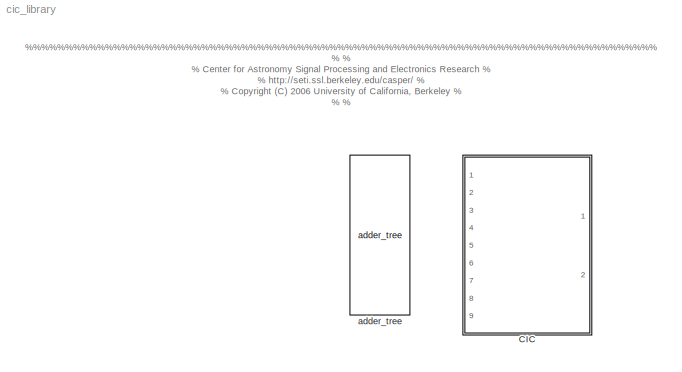
MODEL cic_library
KIND library
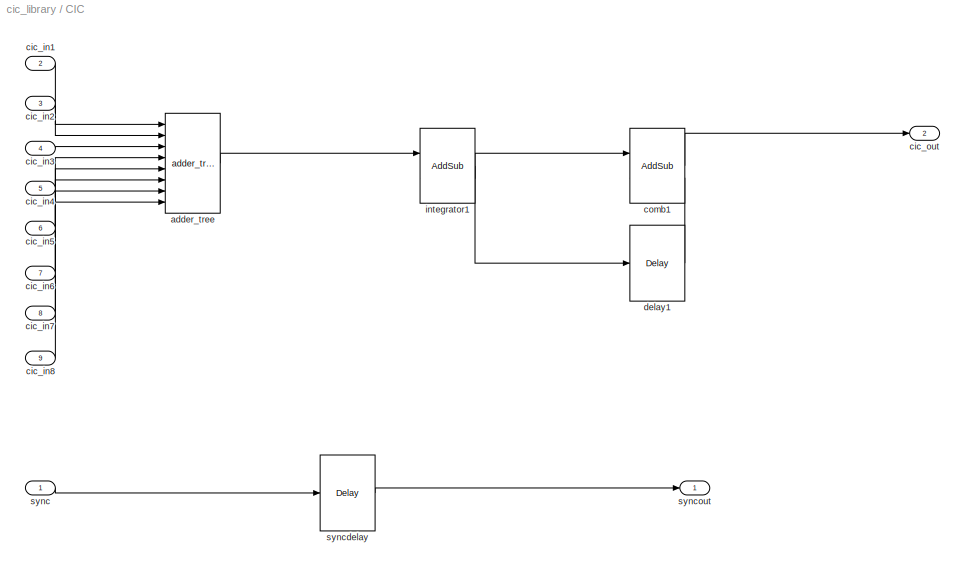
BLOCK [SubSystem] CIC
  Description = Cascaded integrator-comb filter.  Linear phase response.
  MaskCallbackString = |||||||||
  MaskDescription = Cascaded integrator-comb filter.  Linear phase response.  Decimation only; no interpolation.
  MaskEnableString = on,on,on,on,on,on,on,on,off,off
  MaskHelp = eval('xlWeb([getenv(''MLIB_ROOT''), ''<path>''])')
  MaskIconFrame = on
  MaskIconOpaque = on
  MaskIconRotate = none
  MaskIconUnits = autoscale
  MaskInitialization = cic_mask;
  MaskPromptString = Inputs|Input bitwidth|Input binary point|Comb differential delay (D)|Sample rate change (R) (2+ decimates; set to 1 for no decimation)|Number of stages|Pipeline|Adder latency|Integrator latency|Comb latency
  MaskSelfModifiable = on
  MaskStyleString = edit,edit,edit,edit,edit,edit,checkbox,edit,edit,edit
  MaskTabNameString = ,,,,,,,,,
  MaskToolTipString = on,on,on,on,on,on,on,on,on,on
  MaskTunableValueString = on,on,on,on,on,on,on,on,off,off
  MaskType = BEE2 CIC
  MaskValueString = 8|8|7|1|1|1|off|2|1|1
  MaskVarAliasString = ,,,,,,,,,
  MaskVariables = inputs=@1;input_bitwidth=@2;input_binary_pt=@3;D=@4;R=@5;stages=@6;pipeline=@7;add_latency=@8;int_latency=@9;comb_latency=@10;
  MaskVisibilityString = on,on,on,on,on,on,on,on,on,on
  MinAlgLoopOccurrences = off
  Ports = [9, 2]
  RTWSystemCode = Auto
  TreatAsAtomicUnit = off
BLOCK [Reference] CIC/adder_tree  REF=ddc_library/adder_tree  (lib defined in mdl_423f3fd48bb0)
  Ports = [8, 1]
  ShowPortLabels = on
  SourceBlock = ddc_library/adder_tree
  SourceType = Unknown
  latency = add_latency
  num_inputs = inputs
BLOCK [Inport] CIC/cic_in1
  IconDisplay = Port number
  LatchInput = off
  Port = 2
BLOCK [Inport] CIC/cic_in2
  IconDisplay = Port number
  LatchInput = off
  Port = 3
BLOCK [Inport] CIC/cic_in3
  IconDisplay = Port number
  LatchInput = off
  Port = 4
BLOCK [Inport] CIC/cic_in4
  IconDisplay = Port number
  LatchInput = off
  Port = 5
BLOCK [Inport] CIC/cic_in5
  IconDisplay = Port number
  LatchInput = off
  Port = 6
BLOCK [Inport] CIC/cic_in6
  IconDisplay = Port number
  LatchInput = off
  Port = 7
BLOCK [Inport] CIC/cic_in7
  IconDisplay = Port number
  LatchInput = off
  Port = 8
BLOCK [Inport] CIC/cic_in8
  IconDisplay = Port number
  LatchInput = off
  Port = 9
BLOCK [Outport] CIC/cic_out
  BusOutputAsStruct = off
  IconDisplay = Port number
  Port = 2
BLOCK [Reference] CIC/comb1  REF=xbsIndex_r3/AddSub
  Ports = [2, 1]
  SourceBlock = xbsIndex_r3/AddSub
  SourceType = Xilinx Adder/Subtractor
  arith_type = Signed  (2's comp)
  bin_pt = input_binary_pt
  dbl_ovrd = off
  en = off
  explicit_period = on
  gen_core = off
  latency = comb_latency
  mode = Subtraction
  n_bits = ceil(input_bitwidth+log2(inputs)+stages*log2(R*D))
  overflow = Wrap
  period = 1
  pipeline = on
  precision = User Defined
  quantization = Truncate
  show_param = off
  use_carryin = off
  use_carryout = off
  use_core = on
  use_rpm = on
  xl_area = [0, 0, 0, 0, 0, 0, 0]
  xl_use_area = off
BLOCK [Reference] CIC/delay1  REF=xbsIndex_r3/Delay
  Ports = [1, 1]
  SourceBlock = xbsIndex_r3/Delay
  SourceType = Xilinx Delay Block
  accept_only_valid = off
  dbl_ovrd = off
  en = off
  explicit_period = off
  init_zero = on
  latency = D
  period = 1
  reg_retiming = off
  show_param = off
  xl_area = [0, 0, 0, 0, 0, 0, 0]
  xl_use_area = off
BLOCK [Reference] CIC/integrator1  REF=xbsIndex_r3/AddSub
  Ports = [2, 1]
  SourceBlock = xbsIndex_r3/AddSub
  SourceType = Xilinx Adder/Subtractor
  arith_type = Signed  (2's comp)
  bin_pt = input_binary_pt
  dbl_ovrd = off
  en = off
  explicit_period = on
  gen_core = off
  latency = int_latency
  mode = Addition
  n_bits = ceil(input_bitwidth+log2(inputs)+stages*log2(R*D))
  overflow = Wrap
  period = 1
  pipeline = on
  precision = User Defined
  quantization = Truncate
  show_param = off
  use_carryin = off
  use_carryout = off
  use_core = on
  use_rpm = on
  xl_area = [0, 0, 0, 0, 0, 0, 0]
  xl_use_area = off
BLOCK [Inport] CIC/sync
  IconDisplay = Port number
  LatchInput = off
  Port = 1
BLOCK [Reference] CIC/syncdelay  REF=xbsIndex_r3/Delay
  Ports = [1, 1]
  SourceBlock = xbsIndex_r3/Delay
  SourceType = Xilinx Delay Block
  accept_only_valid = off
  dbl_ovrd = off
  en = off
  explicit_period = off
  init_zero = on
  latency = add_latency*log2(inputs)+stages*(int_latency+comb_latency+D+0)
  period = 1
  reg_retiming = off
  show_param = off
  xl_area = [0, 0, 0, 0, 0, 0, 0]
  xl_use_area = off
BLOCK [Outport] CIC/syncout
  BusOutputAsStruct = off
  IconDisplay = Port number
BLOCK [Reference] adder_tree  REF=ddc_library/adder_tree  (lib defined in mdl_423f3fd48bb0)
  Ports = [8, 1]
  ShowPortLabels = on
  SourceBlock = ddc_library/adder_tree
  latency = add_latency
  num_inputs = inputs
ANNOTATION (root): %%%%%%%%%%%%%%%%%%%%%%%%%%%%%%%%%%%%%%%%%%%%%%%%%%%%%%%%%%%%%%%%%%%%%%%%%%%%%%%\n% %\n% Center for Astronomy Signal Processing and Electronics Research %\n% http://seti.ssl.berkeley.edu/casper/ %\n% <copyright redacted>\n% %\n% This program is free software; you can redistribute it and/or modify %\n% it under the terms of the GNU General Public License as publish...<+687ch>
LINE CIC/adder_tree:1 -> CIC/integrator1:1
LINE CIC/cic_in1:1 -> CIC/adder_tree:1
LINE CIC/cic_in2:1 -> CIC/adder_tree:2
LINE CIC/cic_in3:1 -> CIC/adder_tree:3
LINE CIC/cic_in4:1 -> CIC/adder_tree:4
LINE CIC/cic_in5:1 -> CIC/adder_tree:5
LINE CIC/cic_in6:1 -> CIC/adder_tree:6
LINE CIC/cic_in7:1 -> CIC/adder_tree:7
LINE CIC/cic_in8:1 -> CIC/adder_tree:8
LINE CIC/comb1:1 -> CIC/cic_out:1
LINE CIC/delay1:1 -> CIC/comb1:2
NET CIC/integrator1:1 -> CIC/comb1:1, CIC/delay1:1, CIC/integrator1:2
LINE CIC/sync:1 -> CIC/syncdelay:1
LINE CIC/syncdelay:1 -> CIC/syncout:1
note: NET lines group one-source signal fan-out (src -> all destinations, sorted); 1:1 wires keep LINE
note: 1 file-system path scrubbed to <path> (not preserved elsewhere — flat text is the only slx artifact)
